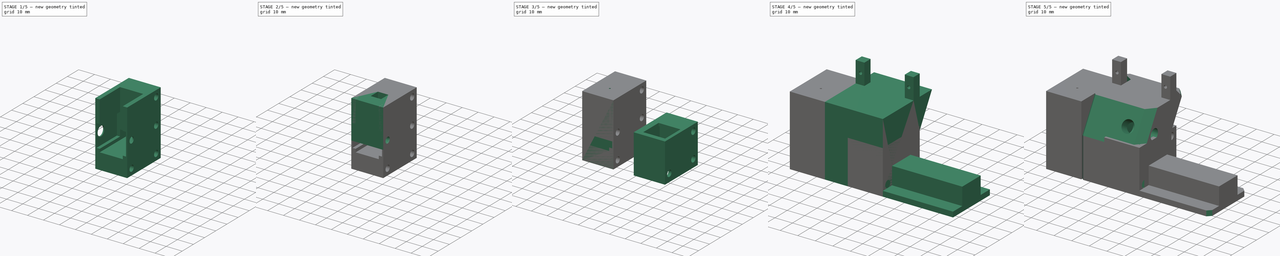
[diagram: build sequence overview — one tinted view per stage of 5, left to right]
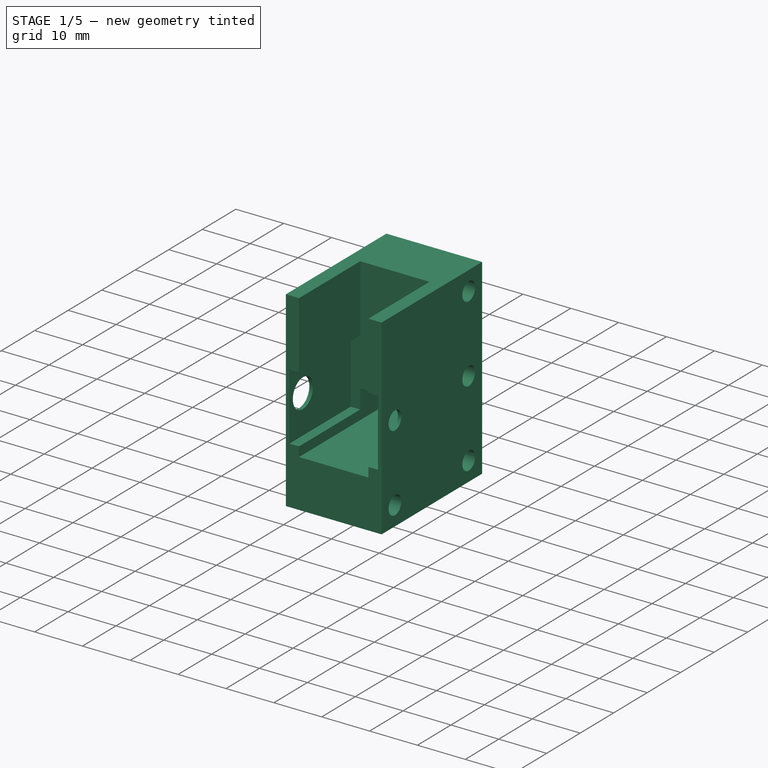
[diagram: stage 1 of 5 — iso view after this stage's code; geometry added in this stage tinted green]
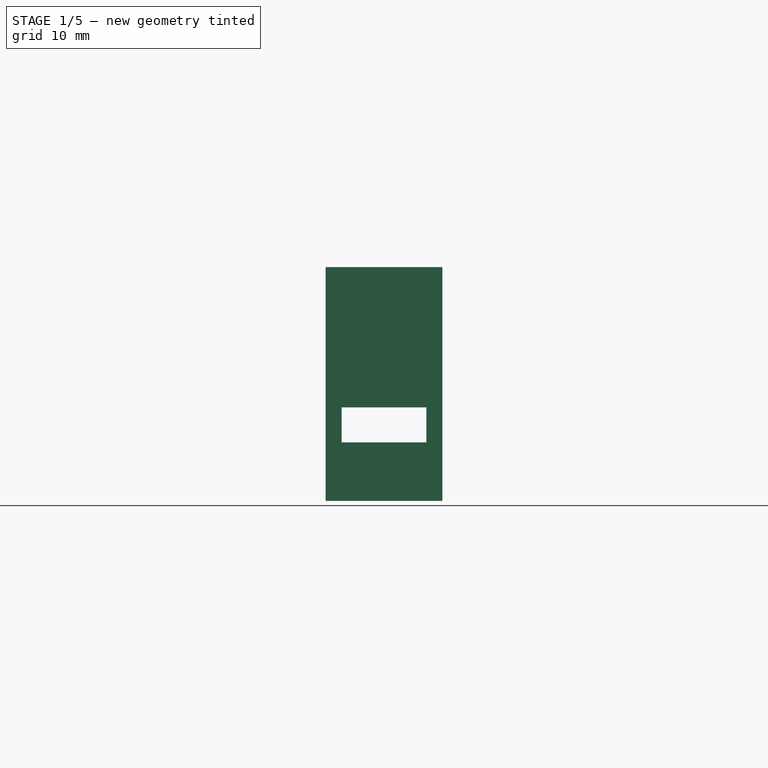
[diagram: stage 1 of 5 — front view after this stage's code; geometry added in this stage tinted green]
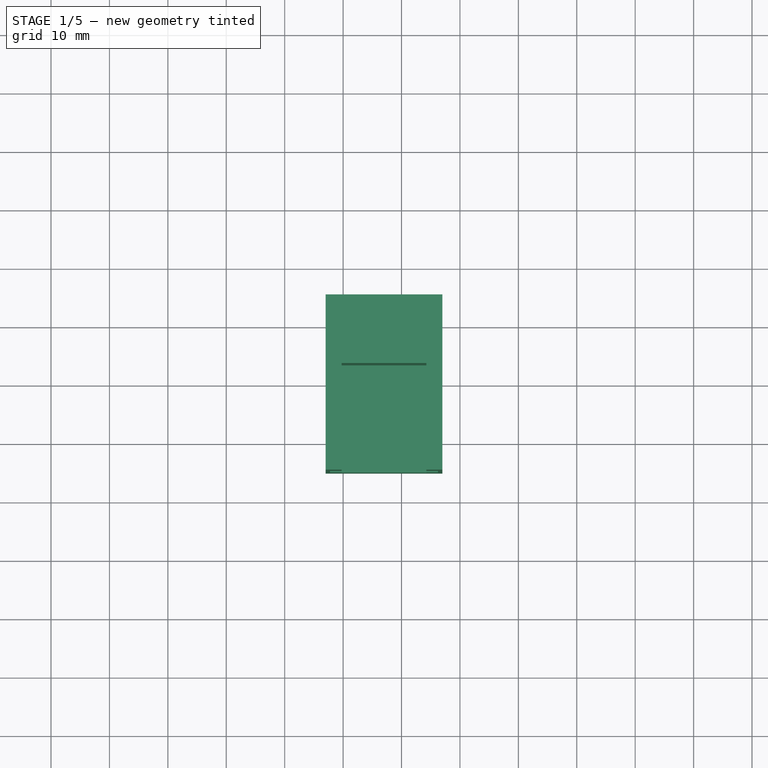
[diagram: stage 1 of 5 — top view after this stage's code; geometry added in this stage tinted green]
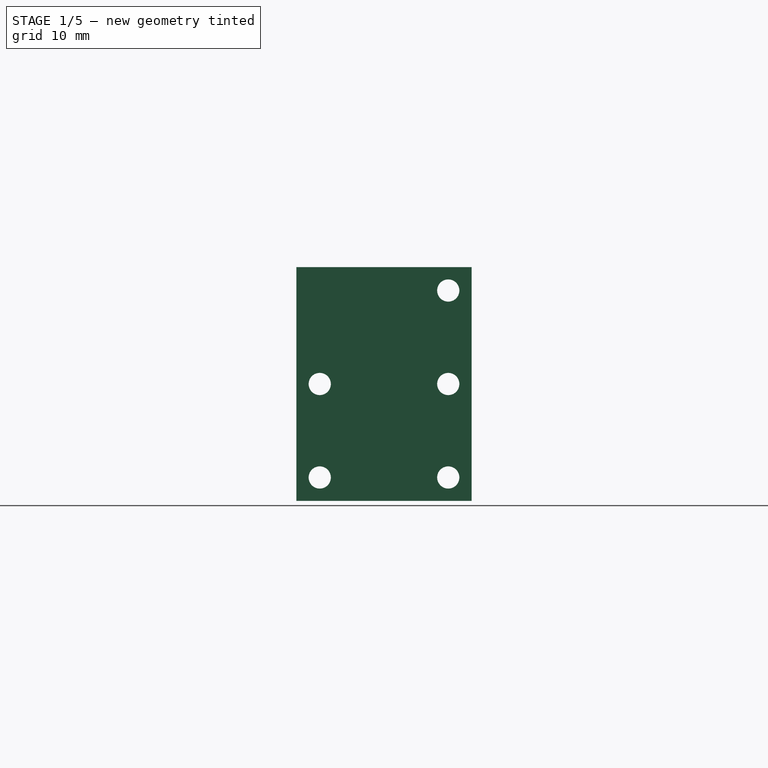
[diagram: stage 1 of 5 — right view after this stage's code; geometry added in this stage tinted green]
FCSTD DOCUMENT  (FreeCAD 0.18.4R)
Label: keyswitch-tester
License: All rights reserved
LicenseURL: http://en.wikipedia.org/wiki/All_rights_reserved
objects: Sketcher::SketchObject×35, PartDesign::Pocket×26, PartDesign::Pad×9, PartDesign::Chamfer×5, PartDesign::Body×5
note: 115 computed .brp shape members not serialized (recipe doc carries the construction recipe); baked Part::Feature solids carry a one-line shape summary decoded from their .brp

FEATURE [PartDesign::Body] Body003  label="MicroswitchHolder"
  Group = -> [Sketch020,Pad007,Sketch019,Pocket013,Sketch021,Pocket012,Sketch022,Pocket014,Sketch023,Pocket015,Sketch024,Pocket016,Sketch025,Pocket017]
  Origin = -> Origin003
  Tip = -> Pocket017
FEATURE [Sketcher::SketchObject] Sketch026
  MapMode = 5
  Support = -> [XY_Plane004]
  sketch-geometry (4):
    g0: LineSegment StartX=-53 StartY=15 StartZ=0 EndX=-33 EndY=15 EndZ=0
    g1: LineSegment StartX=-33 StartY=15 StartZ=0 EndX=-33 EndY=-15 EndZ=0
    g2: LineSegment StartX=-33 StartY=-15 StartZ=0 EndX=-53 EndY=-15 EndZ=0
    g3: LineSegment StartX=-53 StartY=-15 StartZ=0 EndX=-53 EndY=15 EndZ=0
  constraints (12):
    c: Coincident(g0,g1)
    c: Coincident(g1,g2)
    c: Coincident(g2,g3)
    c: Coincident(g3,g0)
    c: Horizontal(g0)
    c: Horizontal(g2)
    c: Vertical(g1)
    c: Vertical(g3)
    c: DistanceY(g3,g3) = 30
    c: DistanceX(g0,g0) = 20
    c: DistanceX(g1,g-1) = 33
    c: DistanceY(g1,g-1) = 15
FEATURE [PartDesign::Pad] Pad008
  Length = 40
  Length2 = 100
  Profile = -> Sketch026
  Refine = true
  Type = 0
FEATURE [Sketcher::SketchObject] Sketch027
  MapMode = 5
  Placement = pos=(-53,0,0) rot=(0.57735,-0.57735,-0.57735;2.0944rad)
  Support = -> [Pad008]
  sketch-geometry (7):
    g0: Circle CenterX=-11 CenterY=36 CenterZ=0 NormalX=0 NormalY=0 NormalZ=1 AngleXU=0 Radius=1.9
    g1: Circle CenterX=11 CenterY=20 CenterZ=0 NormalX=0 NormalY=0 NormalZ=1 AngleXU=0 Radius=1.9
    g2: Circle CenterX=-11 CenterY=20 CenterZ=0 NormalX=0 NormalY=0 NormalZ=1 AngleXU=0 Radius=1.9
    g3: Circle CenterX=-11 CenterY=4 CenterZ=0 NormalX=0 NormalY=0 NormalZ=1 AngleXU=0 Radius=1.9
    g4: Circle CenterX=11 CenterY=4 CenterZ=0 NormalX=0 NormalY=0 NormalZ=1 AngleXU=0 Radius=1.9
    g5: LineSegment [constr] StartX=-11 StartY=36 StartZ=0 EndX=-11 EndY=20 EndZ=0
    g6: LineSegment [constr] StartX=-11 StartY=20 StartZ=0 EndX=-11 EndY=4 EndZ=0
  constraints (18):
    c: Symmetric(g2,g1,g-2)
    c: Symmetric(g3,g4,g-2)
    c: Vertical(g3,g2)
    c: Vertical(g2,g0)
    c: Coincident(g5,g0)
    c: Coincident(g5,g2)
    c: Coincident(g6,g2)
    c: Coincident(g6,g3)
    c: Equal(g6,g5)
    c: Radius(g2) = 1.9
    c: Equal(g1,g2)
    c: Equal(g2,g0)
    c: Equal(g0,g3)
    c: Equal(g3,g4)
    c: DistanceY(g-1,g4) = 4
    c: DistanceX(g3,g4) = 22
    c: Equal(g5,g6)
    c: DistanceY(g6,g6) = 16
FEATURE [PartDesign::Pocket] Pocket018  label="ScrewHoles002"
  BaseFeature = -> Pad008
  Length = 5
  Length2 = 100
  Profile = -> Sketch027
  Refine = true
  Type = 1
FEATURE [Sketcher::SketchObject] Sketch028
  ExternalGeometry = -> [Pocket018]
  MapMode = 5
  Placement = pos=(-53,0,0) rot=(0.57735,-0.57735,-0.57735;2.0944rad)
  Support = -> [Pocket018]
  sketch-geometry (5):
    g0: Circle CenterX=-11 CenterY=36 CenterZ=0 NormalX=0 NormalY=0 NormalZ=1 AngleXU=0 Radius=3
    g1: Circle CenterX=-11 CenterY=20 CenterZ=0 NormalX=0 NormalY=0 NormalZ=1 AngleXU=0 Radius=3
    g2: Circle CenterX=-11 CenterY=4 CenterZ=0 NormalX=0 NormalY=0 NormalZ=1 AngleXU=0 Radius=3
    g3: Circle CenterX=11 CenterY=4 CenterZ=0 NormalX=0 NormalY=0 NormalZ=1 AngleXU=0 Radius=3
    g4: Circle CenterX=11 CenterY=20 CenterZ=0 NormalX=0 NormalY=0 NormalZ=1 AngleXU=0 Radius=3
  constraints (10):
    c: Coincident(g0,g-3)
    c: Coincident(g1,g-4)
    c: Coincident(g2,g-5)
    c: Coincident(g4,g-6)
    c: Coincident(g-7,g3)
    c: Equal(g4,g1)
    c: Equal(g1,g0)
    c: Equal(g0,g2)
    c: Equal(g2,g3)
    c: Radius(g2) = 3
FEATURE [PartDesign::Pocket] Pocket019  label="ScrewHeadHoles002"
  BaseFeature = -> Pocket018
  Length = 3
  Length2 = 100
  Profile = -> Sketch028
  Refine = true
  Type = 0
FEATURE [Sketcher::SketchObject] Sketch029
  ExternalGeometry = -> [Pocket019]
  MapMode = 5
  Placement = pos=(0,0,40) rot=(0,0,1;0rad)
  Support = -> [Pocket019]
  sketch-geometry (1):
    g0: Circle CenterX=-43 CenterY=-4 CenterZ=0 NormalX=0 NormalY=0 NormalZ=1 AngleXU=0 Radius=0.5
  constraints (3):
    c: DistanceY(g-3,g0) = 11
    c: DistanceX(g0,g-3) = 10
    c: Radius(g0) = 0.5
FEATURE [PartDesign::Pocket] Pocket020  label="CentrePoint002"
  BaseFeature = -> Pocket019
  Length = 0.5
  Length2 = 100
  Profile = -> Sketch029
  Refine = true
  Type = 0
FEATURE [Sketcher::SketchObject] Sketch030
  ExternalGeometry = -> [Pocket020]
  MapMode = 5
  Placement = pos=(0,0,40) rot=(0,0,1;0rad)
  Support = -> [Pocket020]
  sketch-geometry (4):
    g0: LineSegment StartX=-50.25 StartY=3.25 StartZ=0 EndX=-35.75 EndY=3.25 EndZ=0
    g1: LineSegment StartX=-35.75 StartY=3.25 StartZ=0 EndX=-35.75 EndY=-11.25 EndZ=0
    g2: LineSegment StartX=-35.75 StartY=-11.25 StartZ=0 EndX=-50.25 EndY=-11.25 EndZ=0
    g3: LineSegment StartX=-50.25 StartY=-11.25 StartZ=0 EndX=-50.25 EndY=3.25 EndZ=0
  constraints (11):
    c: Coincident(g0,g1)
    c: Coincident(g1,g2)
    c: Coincident(g2,g3)
    c: Coincident(g3,g0)
    c: Horizontal(g0)
    c: Horizontal(g2)
    c: Vertical(g1)
    c: Vertical(g3)
    c: Symmetric(g0,g1,g-3)
    c: DistanceY(g1,g1) = 14.5
    c: Equal(g1,g0)
FEATURE [PartDesign::Pocket] Pocket021
  BaseFeature = -> Pocket020
  Length = 30
  Length2 = 100
  Profile = -> Sketch030
  Refine = true
  Type = 0
FEATURE [Sketcher::SketchObject] Sketch031
  ExternalGeometry = -> [Pocket021]
  MapMode = 5
  Placement = pos=(0,-15,0) rot=(1,0,0;1.5708rad)
  Support = -> [Pocket021]
  sketch-geometry (4):
    g0: LineSegment StartX=-50.25 StartY=40 StartZ=0 EndX=-35.75 EndY=40 EndZ=0
    g1: LineSegment StartX=-35.75 StartY=40 StartZ=0 EndX=-35.75 EndY=10 EndZ=0
    g2: LineSegment StartX=-35.75 StartY=10 StartZ=0 EndX=-50.25 EndY=10 EndZ=0
    g3: LineSegment StartX=-50.25 StartY=10 StartZ=0 EndX=-50.25 EndY=40 EndZ=0
  constraints (10):
    c: Coincident(g0,g1)
    c: Coincident(g1,g2)
    c: Coincident(g2,g3)
    c: Coincident(g3,g0)
    c: Horizontal(g2)
    c: Vertical(g1)
    c: Vertical(g3)
    c: Coincident(g0,g-3)
    c: Coincident(g0,g-3)
    c: DistanceY(g3,g3) = 30
FEATURE [PartDesign::Pocket] Pocket022
  BaseFeature = -> Pocket021
  Length = 5
  Length2 = 100
  Profile = -> Sketch031
  Refine = true
  Type = 0
FEATURE [Sketcher::SketchObject] Sketch032
  ExternalGeometry = -> [Pocket022]
  MapMode = 5
  Placement = pos=(0,3.25,0) rot=(1,0,0;1.5708rad)
  Support = -> [Pocket022]
  sketch-geometry (4):
    g0: LineSegment StartX=-50.25 StartY=10 StartZ=0 EndX=-35.75 EndY=10 EndZ=0
    g1: LineSegment StartX=-35.75 StartY=10 StartZ=0 EndX=-35.75 EndY=16 EndZ=0
    g2: LineSegment StartX=-35.75 StartY=16 StartZ=0 EndX=-50.25 EndY=16 EndZ=0
    g3: LineSegment StartX=-50.25 StartY=16 StartZ=0 EndX=-50.25 EndY=10 EndZ=0
  constraints (10):
    c: Coincident(g0,g1)
    c: Coincident(g1,g2)
    c: Coincident(g2,g3)
    c: Coincident(g3,g0)
    c: Horizontal(g2)
    c: Vertical(g1)
    c: Vertical(g3)
    c: Coincident(g0,g-3)
    c: Coincident(g0,g-4)
    c: DistanceY(g1,g1) = 6
FEATURE [PartDesign::Pocket] Pocket023
  BaseFeature = -> Pocket022
  Length = 5
  Length2 = 100
  Profile = -> Sketch032
  Refine = true
  Type = 1
FEATURE [Sketcher::SketchObject] Sketch033
  ExternalGeometry = -> [Pocket023]
  MapMode = 5
  Placement = pos=(0,-15,0) rot=(1,0,0;1.5708rad)
  Support = -> [Pocket023]
  sketch-geometry (8):
    g0: LineSegment StartX=-50.25 StartY=26 StartZ=0 EndX=-52.25 EndY=26 EndZ=0
    g1: LineSegment StartX=-52.25 StartY=26 StartZ=0 EndX=-52.25 EndY=12 EndZ=0
    g2: LineSegment StartX=-52.25 StartY=12 StartZ=0 EndX=-50.25 EndY=12 EndZ=0
    g3: LineSegment StartX=-50.25 StartY=12 StartZ=0 EndX=-50.25 EndY=26 EndZ=0
    g4: LineSegment StartX=-35.75 StartY=26 StartZ=0 EndX=-33.75 EndY=26 EndZ=0
    g5: LineSegment StartX=-33.75 StartY=26 StartZ=0 EndX=-33.75 EndY=12 EndZ=0
    g6: LineSegment StartX=-33.75 StartY=12 StartZ=0 EndX=-35.75 EndY=12 EndZ=0
    g7: LineSegment StartX=-35.75 StartY=12 StartZ=0 EndX=-35.75 EndY=26 EndZ=0
  constraints (24):
    c: Coincident(g0,g1)
    c: Coincident(g1,g2)
    c: Coincident(g3,g0)
    c: Horizontal(g0)
    c: Horizontal(g2)
    c: Vertical(g1)
    c: Vertical(g3)
    c: DistanceX(g0,g0) = 2
    c: Coincident(g3,g2)
    c: PointOnObject(g2,g-3)
    c: DistanceY(g0,g-3) = 14
    c: DistanceY(g3,g3) = 14
    c: Coincident(g4,g5)
    c: Coincident(g5,g6)
    c: Coincident(g6,g7)
    c: Coincident(g7,g4)
    c: Horizontal(g4)
    c: Horizontal(g6)
    c: Vertical(g5)
    c: Vertical(g7)
    c: PointOnObject(g4,g-4)
    c: Horizontal(g0,g4)
    c: Equal(g4,g0)
    c: Equal(g7,g3)
FEATURE [PartDesign::Pocket] Pocket024
  BaseFeature = -> Pocket023
  Length = 18.25
  Length2 = 100
  Profile = -> Sketch033
  Refine = true
  Type = 0
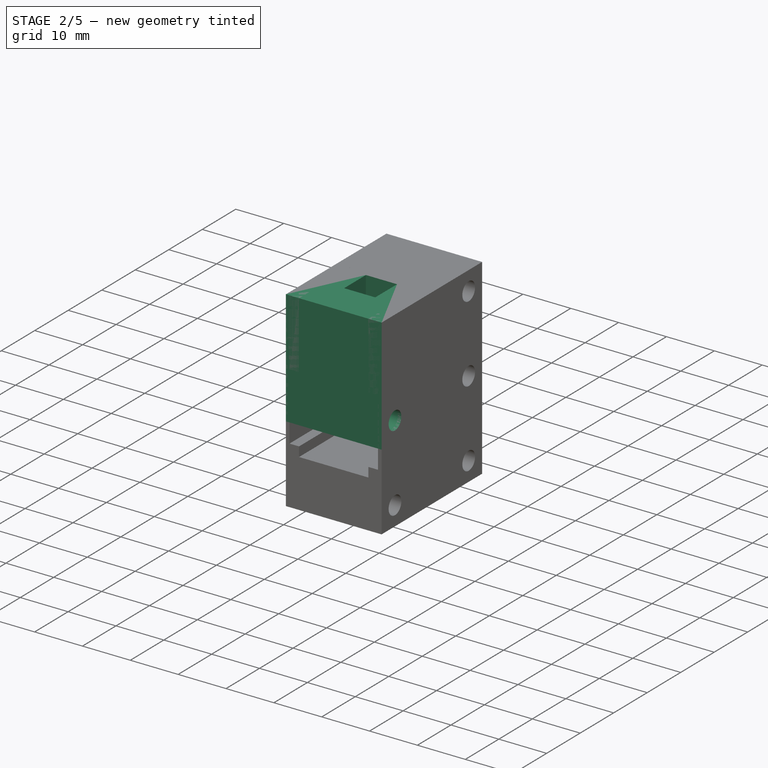
[diagram: stage 2 of 5 — iso view after this stage's code; geometry added in this stage tinted green]
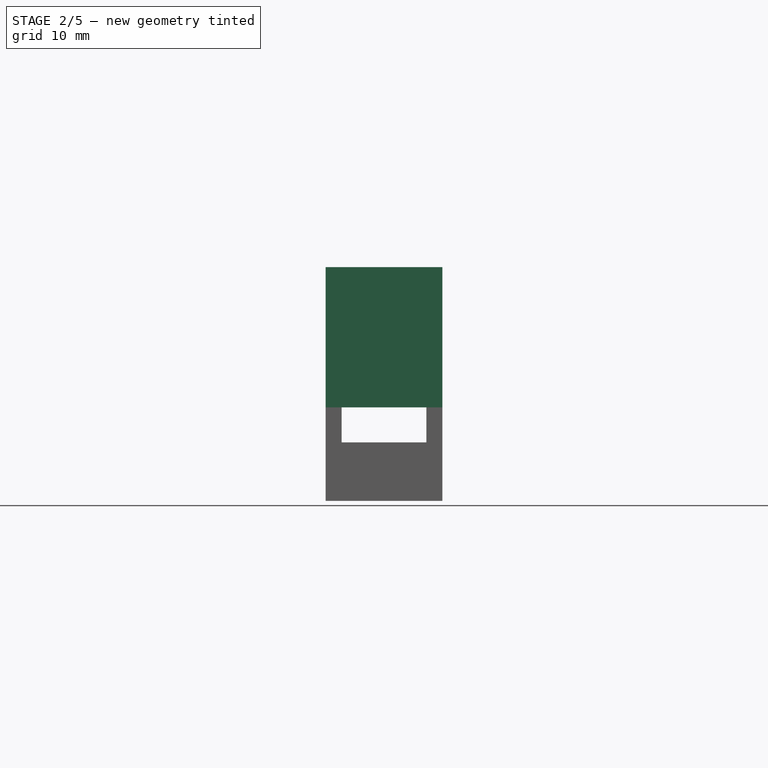
[diagram: stage 2 of 5 — front view after this stage's code; geometry added in this stage tinted green]
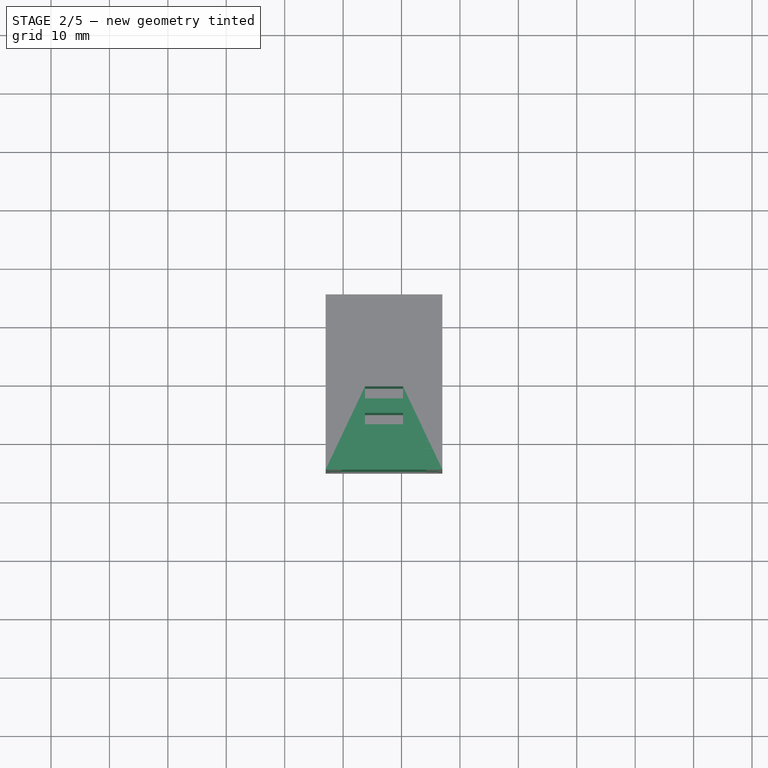
[diagram: stage 2 of 5 — top view after this stage's code; geometry added in this stage tinted green]
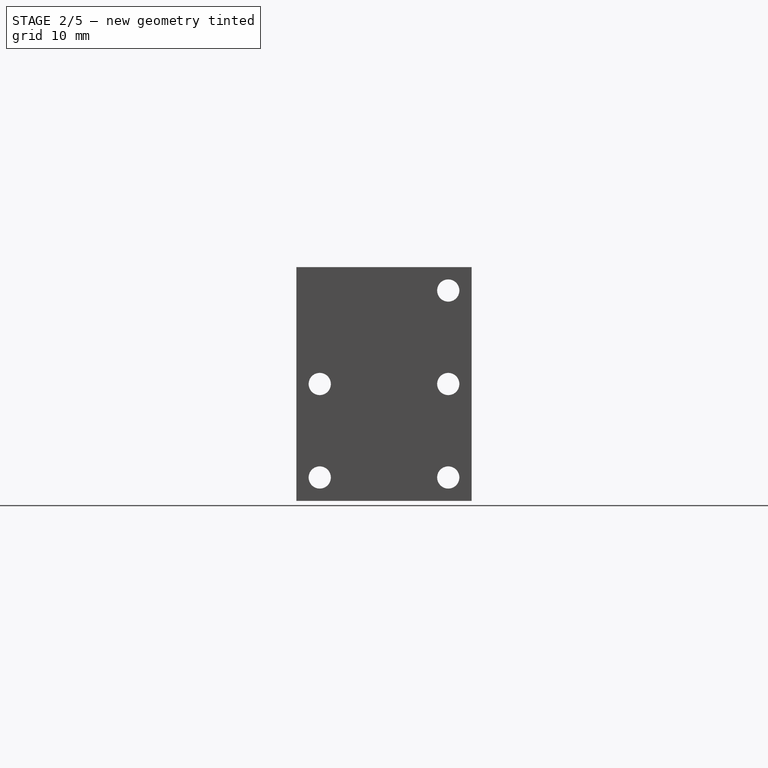
[diagram: stage 2 of 5 — right view after this stage's code; geometry added in this stage tinted green]
FEATURE [PartDesign::Body] Body002  label="BlankHolder"
  Group = -> [Sketch015,Pad006,Sketch016,Pocket009,Sketch017,Pocket010,Sketch018,Pocket011]
  Origin = -> Origin002
  Tip = -> Pocket011
FEATURE [Sketcher::SketchObject] Sketch020
  MapMode = 5
  Support = -> [XY_Plane003]
  sketch-geometry (4):
    g0: LineSegment StartX=-53 StartY=15 StartZ=0 EndX=-33 EndY=15 EndZ=0
    g1: LineSegment StartX=-33 StartY=15 StartZ=0 EndX=-33 EndY=-15 EndZ=0
    g2: LineSegment StartX=-33 StartY=-15 StartZ=0 EndX=-53 EndY=-15 EndZ=0
    g3: LineSegment StartX=-53 StartY=-15 StartZ=0 EndX=-53 EndY=15 EndZ=0
  constraints (12):
    c: Coincident(g0,g1)
    c: Coincident(g1,g2)
    c: Coincident(g2,g3)
    c: Coincident(g3,g0)
    c: Horizontal(g0)
    c: Horizontal(g2)
    c: Vertical(g1)
    c: Vertical(g3)
    c: DistanceY(g3,g3) = 30
    c: DistanceX(g0,g0) = 20
    c: DistanceX(g1,g-1) = 33
    c: DistanceY(g1,g-1) = 15
FEATURE [PartDesign::Pad] Pad007
  Length = 40
  Length2 = 100
  Profile = -> Sketch020
  Refine = true
  Type = 0
FEATURE [Sketcher::SketchObject] Sketch019
  MapMode = 5
  Placement = pos=(-53,0,0) rot=(0.57735,-0.57735,-0.57735;2.0944rad)
  Support = -> [Pad007]
  sketch-geometry (7):
    g0: Circle CenterX=-11 CenterY=36 CenterZ=0 NormalX=0 NormalY=0 NormalZ=1 AngleXU=0 Radius=1.9
    g1: Circle CenterX=11 CenterY=20 CenterZ=0 NormalX=0 NormalY=0 NormalZ=1 AngleXU=0 Radius=1.9
    g2: Circle CenterX=-11 CenterY=20 CenterZ=0 NormalX=0 NormalY=0 NormalZ=1 AngleXU=0 Radius=1.9
    g3: Circle CenterX=-11 CenterY=4 CenterZ=0 NormalX=0 NormalY=0 NormalZ=1 AngleXU=0 Radius=1.9
    g4: Circle CenterX=11 CenterY=4 CenterZ=0 NormalX=0 NormalY=0 NormalZ=1 AngleXU=0 Radius=1.9
    g5: LineSegment [constr] StartX=-11 StartY=36 StartZ=0 EndX=-11 EndY=20 EndZ=0
    g6: LineSegment [constr] StartX=-11 StartY=20 StartZ=0 EndX=-11 EndY=4 EndZ=0
  constraints (18):
    c: Symmetric(g2,g1,g-2)
    c: Symmetric(g3,g4,g-2)
    c: Vertical(g3,g2)
    c: Vertical(g2,g0)
    c: Coincident(g5,g0)
    c: Coincident(g5,g2)
    c: Coincident(g6,g2)
    c: Coincident(g6,g3)
    c: Equal(g6,g5)
    c: Radius(g2) = 1.9
    c: Equal(g1,g2)
    c: Equal(g2,g0)
    c: Equal(g0,g3)
    c: Equal(g3,g4)
    c: DistanceY(g-1,g4) = 4
    c: DistanceX(g3,g4) = 22
    c: Equal(g5,g6)
    c: DistanceY(g6,g6) = 16
FEATURE [PartDesign::Pocket] Pocket013  label="ScrewHoles001"
  BaseFeature = -> Pad007
  Length = 5
  Length2 = 100
  Profile = -> Sketch019
  Refine = true
  Type = 1
FEATURE [Sketcher::SketchObject] Sketch021
  ExternalGeometry = -> [Pocket013]
  MapMode = 5
  Placement = pos=(-53,0,0) rot=(0.57735,-0.57735,-0.57735;2.0944rad)
  Support = -> [Pocket013]
  sketch-geometry (5):
    g0: Circle CenterX=-11 CenterY=36 CenterZ=0 NormalX=0 NormalY=0 NormalZ=1 AngleXU=0 Radius=3
    g1: Circle CenterX=-11 CenterY=20 CenterZ=0 NormalX=0 NormalY=0 NormalZ=1 AngleXU=0 Radius=3
    g2: Circle CenterX=-11 CenterY=4 CenterZ=0 NormalX=0 NormalY=0 NormalZ=1 AngleXU=0 Radius=3
    g3: Circle CenterX=11 CenterY=4 CenterZ=0 NormalX=0 NormalY=0 NormalZ=1 AngleXU=0 Radius=3
    g4: Circle CenterX=11 CenterY=20 CenterZ=0 NormalX=0 NormalY=0 NormalZ=1 AngleXU=0 Radius=3
  constraints (10):
    c: Coincident(g0,g-3)
    c: Coincident(g1,g-4)
    c: Coincident(g2,g-5)
    c: Coincident(g4,g-6)
    c: Coincident(g-7,g3)
    c: Equal(g4,g1)
    c: Equal(g1,g0)
    c: Equal(g0,g2)
    c: Equal(g2,g3)
    c: Radius(g2) = 3
FEATURE [PartDesign::Pocket] Pocket012  label="ScrewHeadHoles001"
  BaseFeature = -> Pocket013
  Length = 3
  Length2 = 100
  Profile = -> Sketch021
  Refine = true
  Type = 0
FEATURE [Sketcher::SketchObject] Sketch022
  ExternalGeometry = -> [Pocket012]
  MapMode = 5
  Placement = pos=(0,0,40) rot=(0,0,1;0rad)
  Support = -> [Pocket012]
  sketch-geometry (1):
    g0: Circle CenterX=-43 CenterY=-4 CenterZ=0 NormalX=0 NormalY=0 NormalZ=1 AngleXU=0 Radius=0.5
  constraints (3):
    c: DistanceY(g-3,g0) = 11
    c: DistanceX(g0,g-3) = 10
    c: Radius(g0) = 0.5
FEATURE [PartDesign::Pocket] Pocket014  label="CentrePoint001"
  BaseFeature = -> Pocket012
  Length = 0.5
  Length2 = 100
  Profile = -> Sketch022
  Refine = true
  Type = 0
FEATURE [Sketcher::SketchObject] Sketch023
  ExternalGeometry = -> [Pocket014]
  MapMode = 5
  Placement = pos=(-53,0,0) rot=(0.57735,-0.57735,-0.57735;2.0944rad)
  Support = -> [Pocket014]
  sketch-geometry (4):
    g0: LineSegment StartX=-15 StartY=0 StartZ=0 EndX=15 EndY=0 EndZ=0
    g1: LineSegment StartX=15 StartY=0 StartZ=0 EndX=15 EndY=16 EndZ=0
    g2: LineSegment StartX=15 StartY=16 StartZ=0 EndX=-15 EndY=16 EndZ=0
    g3: LineSegment StartX=-15 StartY=16 StartZ=0 EndX=-15 EndY=0 EndZ=0
  constraints (11):
    c: Coincident(g0,g1)
    c: Coincident(g1,g2)
    c: Coincident(g2,g3)
    c: Coincident(g3,g0)
    c: Horizontal(g0)
    c: Horizontal(g2)
    c: Vertical(g1)
    c: Vertical(g3)
    c: Coincident(g0,g-3)
    c: PointOnObject(g1,g-4)
    c: DistanceY(g1,g1) = 16
FEATURE [PartDesign::Pocket] Pocket015
  BaseFeature = -> Pocket014
  Length = 5
  Length2 = 100
  Profile = -> Sketch023
  Refine = true
  Type = 1
FEATURE [Sketcher::SketchObject] Sketch024
  ExternalGeometry = -> [Pocket015]
  MapMode = 5
  Placement = pos=(0,0,40) rot=(0,0,1;0rad)
  Support = -> [Pocket015]
  sketch-geometry (4):
    g0: LineSegment StartX=-46.25 StartY=-0.75 StartZ=0 EndX=-39.75 EndY=-0.75 EndZ=0
    g1: LineSegment StartX=-39.75 StartY=-0.75 StartZ=0 EndX=-39.75 EndY=-7.25 EndZ=0
    g2: LineSegment StartX=-39.75 StartY=-7.25 StartZ=0 EndX=-46.25 EndY=-7.25 EndZ=0
    g3: LineSegment StartX=-46.25 StartY=-7.25 StartZ=0 EndX=-46.25 EndY=-0.75 EndZ=0
  constraints (11):
    c: Coincident(g0,g1)
    c: Coincident(g1,g2)
    c: Coincident(g2,g3)
    c: Coincident(g3,g0)
    c: Horizontal(g0)
    c: Horizontal(g2)
    c: Vertical(g1)
    c: Vertical(g3)
    c: Equal(g1,g2)
    c: DistanceX(g2,g2) = 6.5
    c: Symmetric(g2,g0,g-3)
FEATURE [PartDesign::Pocket] Pocket016
  BaseFeature = -> Pocket015
  Length = 3
  Length2 = 100
  Profile = -> Sketch024
  Refine = true
  Type = 0
FEATURE [Sketcher::SketchObject] Sketch025
  ExternalGeometry = -> [Pocket016]
  MapMode = 5
  Placement = pos=(0,0,37) rot=(0,0,1;0rad)
  Support = -> [Pocket016]
  sketch-geometry (8):
    g0: LineSegment StartX=-46.25 StartY=-0.75 StartZ=0 EndX=-39.75 EndY=-0.75 EndZ=0
    g1: LineSegment StartX=-39.75 StartY=-0.75 StartZ=0 EndX=-39.75 EndY=-2.75 EndZ=0
    g2: LineSegment StartX=-39.75 StartY=-2.75 StartZ=0 EndX=-46.25 EndY=-2.75 EndZ=0
    g3: LineSegment StartX=-46.25 StartY=-2.75 StartZ=0 EndX=-46.25 EndY=-0.75 EndZ=0
    g4: LineSegment StartX=-46.25 StartY=-7.25 StartZ=0 EndX=-39.75 EndY=-7.25 EndZ=0
    g5: LineSegment StartX=-39.75 StartY=-7.25 StartZ=0 EndX=-39.75 EndY=-5.25 EndZ=0
    g6: LineSegment StartX=-39.75 StartY=-5.25 StartZ=0 EndX=-46.25 EndY=-5.25 EndZ=0
    g7: LineSegment StartX=-46.25 StartY=-5.25 StartZ=0 EndX=-46.25 EndY=-7.25 EndZ=0
  constraints (20):
    c: Coincident(g0,g1)
    c: Coincident(g1,g2)
    c: Coincident(g2,g3)
    c: Coincident(g3,g0)
    c: Horizontal(g2)
    c: Vertical(g1)
    c: Vertical(g3)
    c: Coincident(g0,g-3)
    c: Coincident(g4,g5)
    c: Coincident(g5,g6)
    c: Coincident(g6,g7)
    c: Coincident(g7,g4)
    c: Horizontal(g6)
    c: Vertical(g5)
    c: Vertical(g7)
    c: Coincident(g4,g-4)
    c: Coincident(g4,g-4)
    c: Coincident(g0,g-3)
    c: Equal(g3,g7)
    c: DistanceY(g3,g3) = 2
FEATURE [PartDesign::Pocket] Pocket017
  BaseFeature = -> Pocket016
  Length = 20
  Length2 = 100
  Profile = -> Sketch025
  Refine = true
  Type = 1
FEATURE [Sketcher::SketchObject] Sketch034
  ExternalGeometry = -> [Pocket024]
  MapMode = 5
  Placement = pos=(0,3.25,7e-16) rot=(1,0,0;1.5708rad)
  Support = -> [Pocket024]
  sketch-geometry (4):
    g0: LineSegment StartX=-50.25 StartY=26 StartZ=0 EndX=-35.75 EndY=26 EndZ=0
    g1: LineSegment StartX=-35.75 StartY=26 StartZ=0 EndX=-35.75 EndY=16 EndZ=0
    g2: LineSegment StartX=-35.75 StartY=16 StartZ=0 EndX=-50.25 EndY=16 EndZ=0
    g3: LineSegment StartX=-50.25 StartY=16 StartZ=0 EndX=-50.25 EndY=26 EndZ=0
  constraints (10):
    c: Coincident(g0,g1)
    c: Coincident(g1,g2)
    c: Coincident(g2,g3)
    c: Coincident(g3,g0)
    c: Horizontal(g0)
    c: Horizontal(g2)
    c: Vertical(g1)
    c: PointOnObject(g0,g-4)
    c: Coincident(g-5,g2)
    c: Coincident(g-6,g0)
FEATURE [PartDesign::Pocket] Pocket025
  BaseFeature = -> Pocket024
  Length = 4
  Length2 = 100
  Profile = -> Sketch034
  Refine = true
  Type = 0
FEATURE [PartDesign::Body] Body004  label="JesHolder"
  Group = -> [Sketch026,Pad008,Sketch027,Pocket018,Sketch028,Pocket019,Sketch029,Pocket020,Sketch030,Pocket021,Sketch031,Pocket022,Sketch032,Pocket023,Sketch033,Pocket024,Sketch034,Pocket025]
  Origin = -> Origin004
  Tip = -> Pocket025
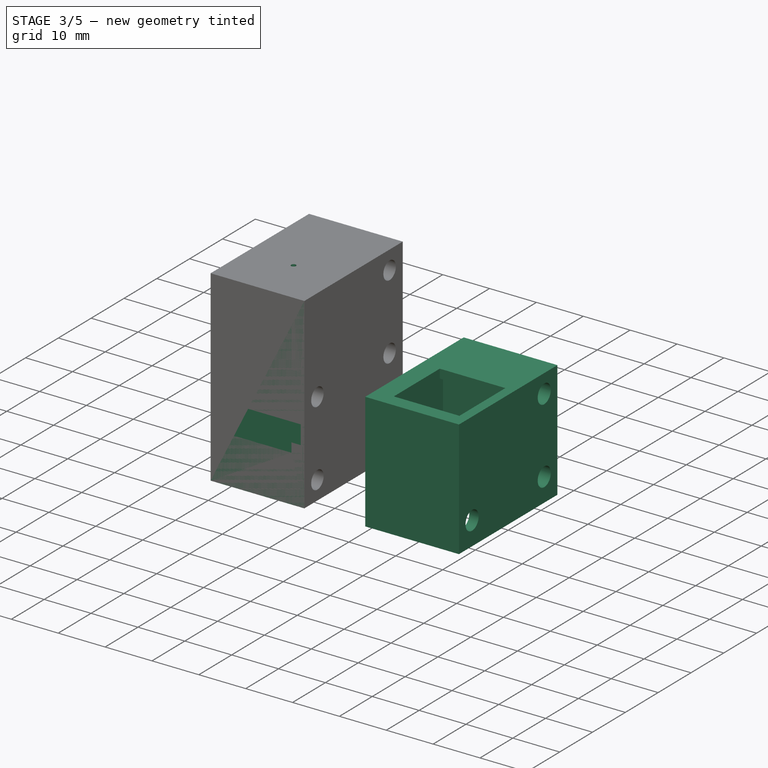
[diagram: stage 3 of 5 — iso view after this stage's code; geometry added in this stage tinted green]
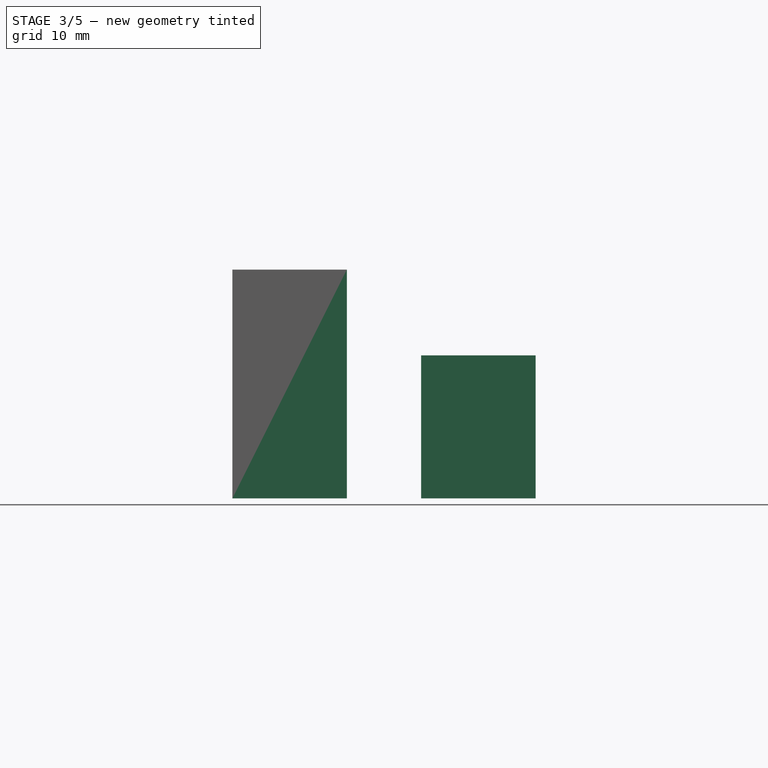
[diagram: stage 3 of 5 — front view after this stage's code; geometry added in this stage tinted green]
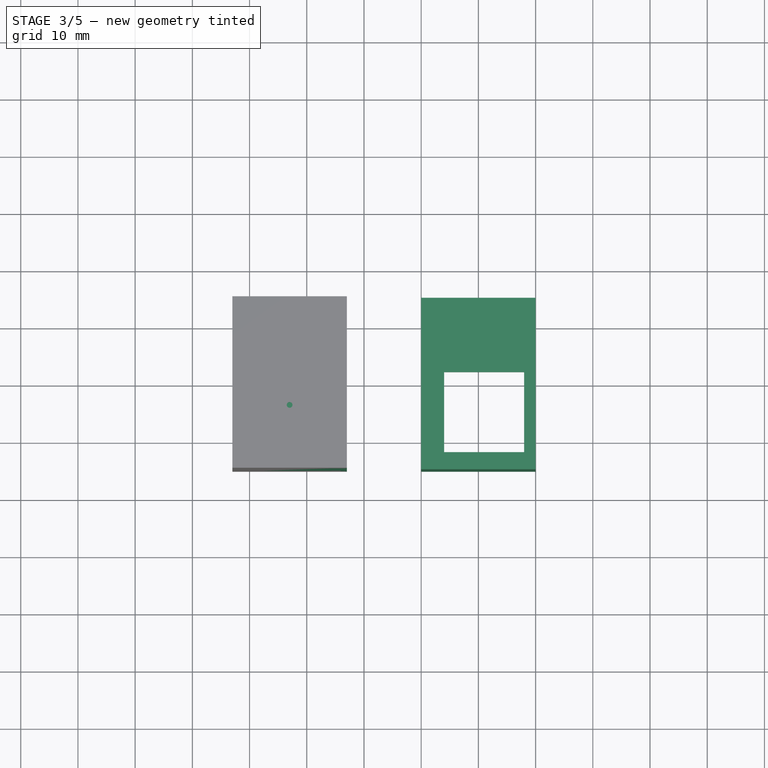
[diagram: stage 3 of 5 — top view after this stage's code; geometry added in this stage tinted green]
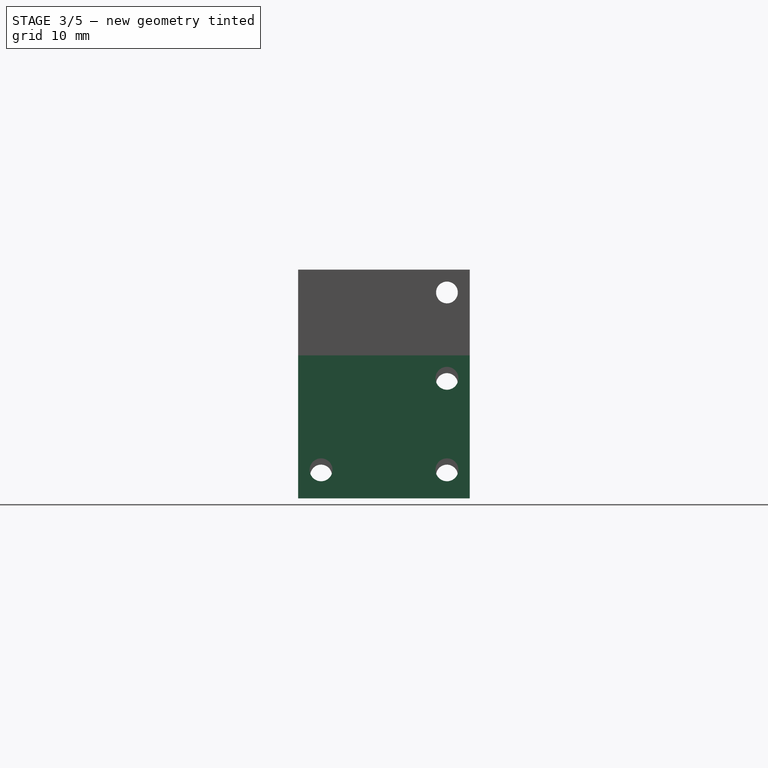
[diagram: stage 3 of 5 — right view after this stage's code; geometry added in this stage tinted green]
FEATURE [PartDesign::Body] Body
  Group = -> [Sketch,Pad,Sketch001,Pad001,Sketch002,Pocket,Sketch003,Pad002,Sketch004,Pocket001,Sketch005,Pad003,Sketch006,Pocket002,Chamfer,Chamfer001,Chamfer002,Chamfer003,Sketch007,Pocket003,Sketch008,Pocket004,Chamfer004]
  Origin = -> Origin
  Tip = -> Chamfer004
FEATURE [Sketcher::SketchObject] Sketch009
  MapMode = 5
  Support = -> [XY_Plane001]
  sketch-geometry (8):
    g0: LineSegment StartX=-20 StartY=15 StartZ=0 EndX=0 EndY=15 EndZ=0
    g1: LineSegment StartX=0 StartY=15 StartZ=0 EndX=0 EndY=-15 EndZ=0
    g2: LineSegment StartX=0 StartY=-15 StartZ=0 EndX=-20 EndY=-15 EndZ=0
    g3: LineSegment StartX=-20 StartY=-15 StartZ=0 EndX=-20 EndY=15 EndZ=0
    g4: LineSegment StartX=-16 StartY=2 StartZ=0 EndX=-2 EndY=2 EndZ=0
    g5: LineSegment StartX=-2 StartY=2 StartZ=0 EndX=-2 EndY=-12 EndZ=0
    g6: LineSegment StartX=-2 StartY=-12 StartZ=0 EndX=-16 EndY=-12 EndZ=0
    g7: LineSegment StartX=-16 StartY=-12 StartZ=0 EndX=-16 EndY=2 EndZ=0
  constraints (23):
    c: Coincident(g0,g1)
    c: Coincident(g1,g2)
    c: Coincident(g2,g3)
    c: Coincident(g3,g0)
    c: Horizontal(g0)
    c: Horizontal(g2)
    c: Vertical(g1)
    c: Coincident(g4,g5)
    c: Coincident(g5,g6)
    c: Coincident(g6,g7)
    c: Coincident(g7,g4)
    c: Horizontal(g4)
    c: Horizontal(g6)
    c: Vertical(g5)
    c: Vertical(g7)
    c: DistanceX(g6,g6) = 14
    c: Equal(g7,g6)
    c: DistanceX(g5,g1) = 2
    c: DistanceY(g1,g1) = 30
    c: Symmetric(g2,g0,g-1)
    c: PointOnObject(g-1,g1)
    c: DistanceX(g2,g2) = 20
    c: DistanceY(g1,g5) = 3
FEATURE [PartDesign::Pad] Pad004
  Length = 25
  Length2 = 100
  Profile = -> Sketch009
  Refine = true
  Type = 0
FEATURE [Sketcher::SketchObject] Sketch010
  ExternalGeometry = -> [Pad004]
  MapMode = 5
  Placement = pos=(0,15,0) rot=(0,0.707107,0.707107;3.14159rad)
  Support = -> [Pad004]
  sketch-geometry (1):
    g0: Circle CenterX=10 CenterY=12.5 CenterZ=0 NormalX=0 NormalY=0 NormalZ=1 AngleXU=0 Radius=4
  constraints (2):
    c: Symmetric(g-3,g-4,g0)
    c: Radius(g0) = 4
FEATURE [PartDesign::Pocket] Pocket005
  BaseFeature = -> Pad004
  Length = 15
  Length2 = 100
  Profile = -> Sketch010
  Refine = true
  Type = 0
FEATURE [Sketcher::SketchObject] Sketch011
  ExternalGeometry = -> [Pocket005]
  MapMode = 5
  Placement = pos=(0,0,0) rot=(1,0,0;3.14159rad)
  Support = -> [Pocket005]
  sketch-geometry (4):
    g0: LineSegment StartX=-16 StartY=13 StartZ=0 EndX=-2 EndY=13 EndZ=0
    g1: LineSegment StartX=-2 StartY=13 StartZ=0 EndX=-2 EndY=-3 EndZ=0
    g2: LineSegment StartX=-2 StartY=-3 StartZ=0 EndX=-16 EndY=-3 EndZ=0
    g3: LineSegment StartX=-16 StartY=-3 StartZ=0 EndX=-16 EndY=13 EndZ=0
  constraints (12):
    c: Coincident(g0,g1)
    c: Coincident(g1,g2)
    c: Coincident(g2,g3)
    c: Coincident(g3,g0)
    c: Horizontal(g0)
    c: Horizontal(g2)
    c: Vertical(g1)
    c: Vertical(g3)
    c: PointOnObject(g-4,g1)
    c: PointOnObject(g-3,g3)
    c: DistanceY(g-3,g0) = 1
    c: DistanceY(g2,g-3) = 1
FEATURE [PartDesign::Pocket] Pocket006
  BaseFeature = -> Pocket005
  Length = 0
  Length2 = 100
  Offset = -1.9
  Profile = -> Sketch011
  Refine = true
  Type = 3
  UpToFace = -> Pocket005 [Face4]
FEATURE [Sketcher::SketchObject] Sketch012
  MapMode = 5
  Placement = pos=(-20,0,0) rot=(0.57735,-0.57735,-0.57735;2.0944rad)
  Support = -> [Pocket006]
  sketch-geometry (3):
    g0: Circle CenterX=-11 CenterY=21 CenterZ=0 NormalX=0 NormalY=0 NormalZ=1 AngleXU=0 Radius=2
    g1: Circle CenterX=-11 CenterY=5 CenterZ=0 NormalX=0 NormalY=0 NormalZ=1 AngleXU=0 Radius=2
    g2: Circle CenterX=11 CenterY=5 CenterZ=0 NormalX=0 NormalY=0 NormalZ=1 AngleXU=0 Radius=2
  constraints (8):
    c: Vertical(g0,g1)
    c: Symmetric(g1,g2,g-2)
    c: Equal(g1,g2)
    c: Equal(g2,g0)
    c: Radius(g1) = 2
    c: DistanceY(g-1,g1) = 5
    c: DistanceY(g1,g0) = 16
    c: DistanceX(g1,g-1) = 11
FEATURE [PartDesign::Pocket] Pocket007
  BaseFeature = -> Pocket006
  Length = 5
  Length2 = 100
  Profile = -> Sketch012
  Refine = true
  Type = 1
FEATURE [PartDesign::Body] Body001  label="CherryHolder"
  Group = -> [Sketch009,Pad004,Sketch010,Pocket005,Sketch011,Pocket006,Sketch012,Pocket007,Sketch013,Pocket008,Sketch014,Pad005]
  Origin = -> Origin001
  Placement = pos=(-33,0,15) rot=(0,0,1;0rad)
  Tip = -> Pad005
FEATURE [Sketcher::SketchObject] Sketch015
  MapMode = 5
  Support = -> [XY_Plane002]
  sketch-geometry (4):
    g0: LineSegment StartX=-53 StartY=15 StartZ=0 EndX=-33 EndY=15 EndZ=0
    g1: LineSegment StartX=-33 StartY=15 StartZ=0 EndX=-33 EndY=-15 EndZ=0
    g2: LineSegment StartX=-33 StartY=-15 StartZ=0 EndX=-53 EndY=-15 EndZ=0
    g3: LineSegment StartX=-53 StartY=-15 StartZ=0 EndX=-53 EndY=15 EndZ=0
  constraints (12):
    c: Coincident(g0,g1)
    c: Coincident(g1,g2)
    c: Coincident(g2,g3)
    c: Coincident(g3,g0)
    c: Horizontal(g0)
    c: Horizontal(g2)
    c: Vertical(g1)
    c: Vertical(g3)
    c: DistanceY(g3,g3) = 30
    c: DistanceX(g0,g0) = 20
    c: DistanceX(g1,g-1) = 33
    c: DistanceY(g1,g-1) = 15
FEATURE [PartDesign::Pad] Pad006
  Length = 40
  Length2 = 100
  Profile = -> Sketch015
  Refine = true
  Type = 0
FEATURE [Sketcher::SketchObject] Sketch016
  MapMode = 5
  Placement = pos=(-53,0,0) rot=(0.57735,-0.57735,-0.57735;2.0944rad)
  Support = -> [Pad006]
  sketch-geometry (7):
    g0: Circle CenterX=-11 CenterY=36 CenterZ=0 NormalX=0 NormalY=0 NormalZ=1 AngleXU=0 Radius=1.9
    g1: Circle CenterX=11 CenterY=20 CenterZ=0 NormalX=0 NormalY=0 NormalZ=1 AngleXU=0 Radius=1.9
    g2: Circle CenterX=-11 CenterY=20 CenterZ=0 NormalX=0 NormalY=0 NormalZ=1 AngleXU=0 Radius=1.9
    g3: Circle CenterX=-11 CenterY=4 CenterZ=0 NormalX=0 NormalY=0 NormalZ=1 AngleXU=0 Radius=1.9
    g4: Circle CenterX=11 CenterY=4 CenterZ=0 NormalX=0 NormalY=0 NormalZ=1 AngleXU=0 Radius=1.9
    g5: LineSegment [constr] StartX=-11 StartY=36 StartZ=0 EndX=-11 EndY=20 EndZ=0
    g6: LineSegment [constr] StartX=-11 StartY=20 StartZ=0 EndX=-11 EndY=4 EndZ=0
  constraints (18):
    c: Symmetric(g2,g1,g-2)
    c: Symmetric(g3,g4,g-2)
    c: Vertical(g3,g2)
    c: Vertical(g2,g0)
    c: Coincident(g5,g0)
    c: Coincident(g5,g2)
    c: Coincident(g6,g2)
    c: Coincident(g6,g3)
    c: Equal(g6,g5)
    c: Radius(g2) = 1.9
    c: Equal(g1,g2)
    c: Equal(g2,g0)
    c: Equal(g0,g3)
    c: Equal(g3,g4)
    c: DistanceY(g-1,g4) = 4
    c: DistanceX(g3,g4) = 22
    c: Equal(g5,g6)
    c: DistanceY(g6,g6) = 16
FEATURE [PartDesign::Pocket] Pocket009  label="ScrewHoles"
  BaseFeature = -> Pad006
  Length = 5
  Length2 = 100
  Profile = -> Sketch016
  Refine = true
  Type = 1
FEATURE [Sketcher::SketchObject] Sketch017
  ExternalGeometry = -> [Pocket009]
  MapMode = 5
  Placement = pos=(-53,0,0) rot=(0.57735,-0.57735,-0.57735;2.0944rad)
  Support = -> [Pocket009]
  sketch-geometry (5):
    g0: Circle CenterX=-11 CenterY=36 CenterZ=0 NormalX=0 NormalY=0 NormalZ=1 AngleXU=0 Radius=3
    g1: Circle CenterX=-11 CenterY=20 CenterZ=0 NormalX=0 NormalY=0 NormalZ=1 AngleXU=0 Radius=3
    g2: Circle CenterX=-11 CenterY=4 CenterZ=0 NormalX=0 NormalY=0 NormalZ=1 AngleXU=0 Radius=3
    g3: Circle CenterX=11 CenterY=4 CenterZ=0 NormalX=0 NormalY=0 NormalZ=1 AngleXU=0 Radius=3
    g4: Circle CenterX=11 CenterY=20 CenterZ=0 NormalX=0 NormalY=0 NormalZ=1 AngleXU=0 Radius=3
  constraints (10):
    c: Coincident(g0,g-3)
    c: Coincident(g1,g-4)
    c: Coincident(g2,g-5)
    c: Coincident(g4,g-6)
    c: Coincident(g-7,g3)
    c: Equal(g4,g1)
    c: Equal(g1,g0)
    c: Equal(g0,g2)
    c: Equal(g2,g3)
    c: Radius(g2) = 3
FEATURE [PartDesign::Pocket] Pocket010  label="ScrewHeadHoles"
  BaseFeature = -> Pocket009
  Length = 3
  Length2 = 100
  Profile = -> Sketch017
  Refine = true
  Type = 0
FEATURE [Sketcher::SketchObject] Sketch018
  ExternalGeometry = -> [Pocket010]
  MapMode = 5
  Placement = pos=(0,0,40) rot=(0,0,1;0rad)
  Support = -> [Pocket010]
  sketch-geometry (1):
    g0: Circle CenterX=-43 CenterY=-4 CenterZ=0 NormalX=0 NormalY=0 NormalZ=1 AngleXU=0 Radius=0.5
  constraints (3):
    c: DistanceY(g-3,g0) = 11
    c: DistanceX(g0,g-3) = 10
    c: Radius(g0) = 0.5
FEATURE [PartDesign::Pocket] Pocket011  label="CentrePoint"
  BaseFeature = -> Pocket010
  Length = 0.5
  Length2 = 100
  Profile = -> Sketch018
  Refine = true
  Type = 0
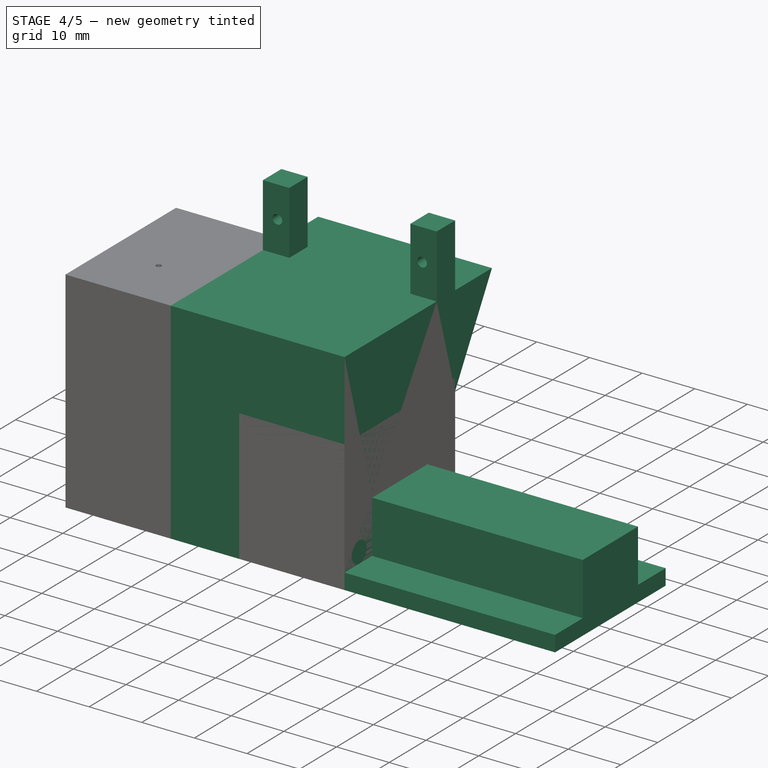
[diagram: stage 4 of 5 — iso view after this stage's code; geometry added in this stage tinted green]
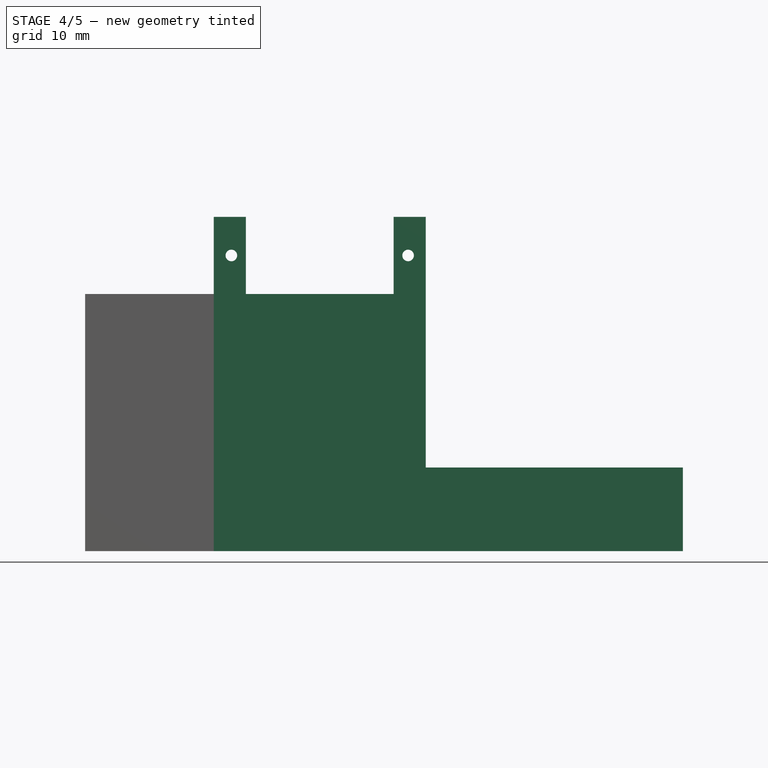
[diagram: stage 4 of 5 — front view after this stage's code; geometry added in this stage tinted green]
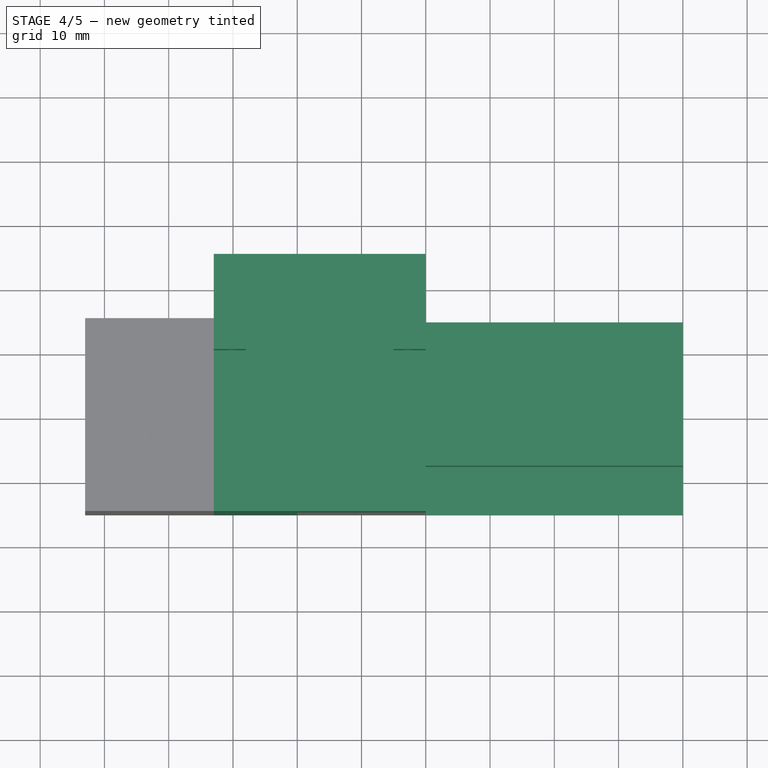
[diagram: stage 4 of 5 — top view after this stage's code; geometry added in this stage tinted green]
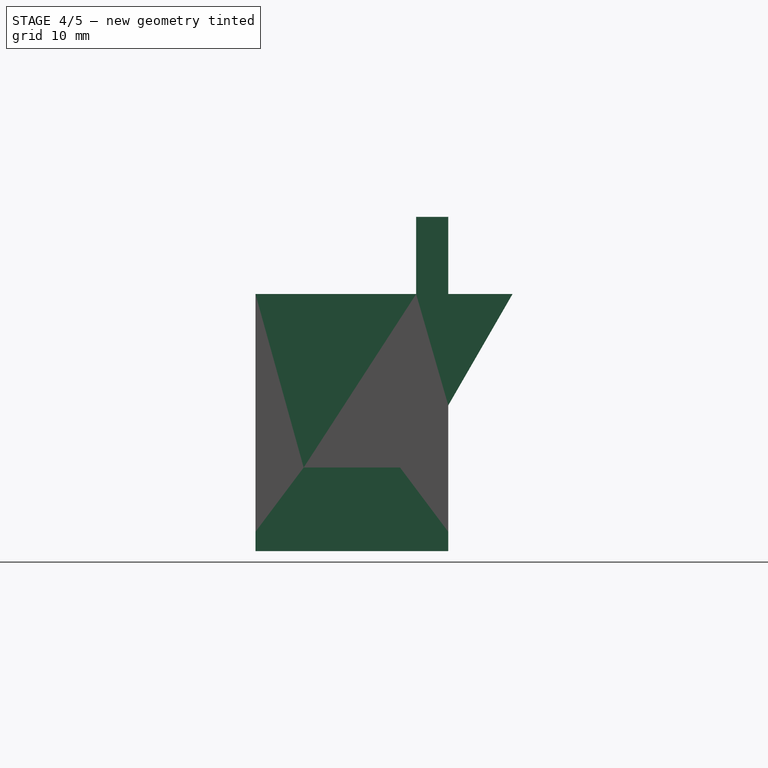
[diagram: stage 4 of 5 — right view after this stage's code; geometry added in this stage tinted green]
FEATURE [Sketcher::SketchObject] Sketch
  MapMode = 5
  Placement = pos=(0,0,0) rot=(1,0,0;1.5708rad)
  Support = -> [XZ_Plane]
  sketch-geometry (6):
    g0: LineSegment StartX=-33 StartY=40 StartZ=0 EndX=-33 EndY=0 EndZ=0
    g1: LineSegment StartX=-33 StartY=0 StartZ=0 EndX=40 EndY=0 EndZ=0
    g2: LineSegment StartX=40 StartY=0 StartZ=0 EndX=40 EndY=3 EndZ=0
    g3: LineSegment StartX=40 StartY=3 StartZ=0 EndX=0 EndY=3 EndZ=0
    g4: LineSegment StartX=0 StartY=3 StartZ=0 EndX=0 EndY=40 EndZ=0
    g5: LineSegment StartX=0 StartY=40 StartZ=0 EndX=-33 EndY=40 EndZ=0
  constraints (18):
    c: PointOnObject(g0,g-1)
    c: Vertical(g0)
    c: Coincident(g0,g1)
    c: PointOnObject(g1,g-1)
    c: Coincident(g1,g2)
    c: Coincident(g2,g3)
    c: Horizontal(g3)
    c: Coincident(g3,g4)
    c: Vertical(g4)
    c: Coincident(g4,g5)
    c: Coincident(g5,g0)
    c: Horizontal(g5)
    c: DistanceY(g0,g0) = 40
    c: DistanceX(g5,g5) = 33
    c: DistanceX(g3,g3) = 40
    c: Vertical(g2)
    c: DistanceY(g2,g2) = 3
    c: PointOnObject(g3,g-2)
FEATURE [PartDesign::Pad] Pad
  Length = 30
  Length2 = 100
  Midplane = true
  Placement = pos=(0,0,0) rot=(1,0,0;1.5708rad)
  Profile = -> Sketch
  Refine = true
  Type = 0
FEATURE [Sketcher::SketchObject] Sketch001
  ExternalGeometry = -> [Pad]
  MapMode = 5
  Placement = pos=(0,1.3e-15,3) rot=(0,0,1;3.14159rad)
  Support = -> [Pad]
  sketch-geometry (4):
    g0: LineSegment StartX=0 StartY=7.5 StartZ=0 EndX=-40 EndY=7.5 EndZ=0
    g1: LineSegment StartX=-40 StartY=7.5 StartZ=0 EndX=-40 EndY=-7.5 EndZ=0
    g2: LineSegment StartX=-40 StartY=-7.5 StartZ=0 EndX=0 EndY=-7.5 EndZ=0
    g3: LineSegment StartX=0 StartY=-7.5 StartZ=0 EndX=0 EndY=7.5 EndZ=0
  constraints (11):
    c: Coincident(g0,g1)
    c: Coincident(g1,g2)
    c: Coincident(g2,g3)
    c: Coincident(g3,g0)
    c: Horizontal(g0)
    c: Horizontal(g2)
    c: Vertical(g3)
    c: PointOnObject(g0,g-2)
    c: PointOnObject(g0,g-3)
    c: DistanceY(g1,g1) = 15
    c: Symmetric(g0,g1,g-1)
FEATURE [PartDesign::Pad] Pad001
  BaseFeature = -> Pad
  Length = 10
  Length2 = 100
  Placement = pos=(0,0,0) rot=(1,0,0;1.5708rad)
  Profile = -> Sketch001
  Refine = true
  Type = 0
FEATURE [Sketcher::SketchObject] Sketch002
  ExternalGeometry = -> [Pad001]
  MapMode = 5
  Placement = pos=(-33,0,0) rot=(0.707107,0,-0.707107;3.14159rad)
  Support = -> [Pad001]
  sketch-geometry (7):
    g0: Circle CenterX=-36 CenterY=11 CenterZ=0 NormalX=0 NormalY=0 NormalZ=1 AngleXU=0 Radius=2
    g1: Circle CenterX=-20 CenterY=11 CenterZ=0 NormalX=0 NormalY=0 NormalZ=1 AngleXU=0 Radius=2
    g2: Circle CenterX=-4 CenterY=11 CenterZ=0 NormalX=0 NormalY=0 NormalZ=1 AngleXU=0 Radius=2
    g3: Circle CenterX=-4 CenterY=-11 CenterZ=0 NormalX=0 NormalY=0 NormalZ=1 AngleXU=0 Radius=2
    g4: Circle CenterX=-20 CenterY=-11 CenterZ=0 NormalX=0 NormalY=0 NormalZ=1 AngleXU=0 Radius=2
    g5: Circle CenterX=-36 CenterY=-11 CenterZ=0 NormalX=0 NormalY=0 NormalZ=1 AngleXU=0 Radius=2
    g6: LineSegment [constr] StartX=-20 StartY=11 StartZ=0 EndX=-20 EndY=-11 EndZ=0
  constraints (16):
    c: Equal(g0,g5)
    c: Equal(g5,g4)
    c: Equal(g4,g3)
    c: Equal(g3,g2)
    c: Equal(g2,g1)
    c: Symmetric(g0,g5,g-1)
    c: Horizontal(g0,g1)
    c: Symmetric(g3,g2,g-1)
    c: Symmetric(g4,g1,g-1)
    c: Coincident(g6,g1)
    c: Coincident(g6,g4)
    c: Symmetric(g0,g2,g6)
    c: Radius(g0) = 2
    c: DistanceX(g2,g-3) = 4
    c: DistanceY(g2,g-3) = 4
    c: Symmetric(g-3,g-3,g6)
FEATURE [PartDesign::Pocket] Pocket
  BaseFeature = -> Pad001
  Length = 20
  Length2 = 100
  Placement = pos=(0,0,0) rot=(1,0,0;1.5708rad)
  Profile = -> Sketch002
  Refine = true
  Type = 0
FEATURE [Sketcher::SketchObject] Sketch003
  ExternalGeometry = -> [Pocket]
  MapMode = 5
  Placement = pos=(0,1.76e-14,40) rot=(0,0,1;3.14159rad)
  Support = -> [Pocket]
  sketch-geometry (8):
    g0: LineSegment StartX=0 StartY=-15 StartZ=0 EndX=5 EndY=-15 EndZ=0
    g1: LineSegment StartX=5 StartY=-15 StartZ=0 EndX=5 EndY=-10 EndZ=0
    g2: LineSegment StartX=5 StartY=-10 StartZ=0 EndX=0 EndY=-10 EndZ=0
    g3: LineSegment StartX=0 StartY=-10 StartZ=0 EndX=0 EndY=-15 EndZ=0
    g4: LineSegment StartX=33 StartY=-15 StartZ=0 EndX=28 EndY=-15 EndZ=0
    g5: LineSegment StartX=28 StartY=-15 StartZ=0 EndX=28 EndY=-10 EndZ=0
    g6: LineSegment StartX=28 StartY=-10 StartZ=0 EndX=33 EndY=-10 EndZ=0
    g7: LineSegment StartX=33 StartY=-10 StartZ=0 EndX=33 EndY=-15 EndZ=0
  constraints (22):
    c: Coincident(g0,g1)
    c: Coincident(g1,g2)
    c: Coincident(g2,g3)
    c: Coincident(g3,g0)
    c: Horizontal(g0)
    c: Horizontal(g2)
    c: Vertical(g1)
    c: Vertical(g3)
    c: Coincident(g4,g5)
    c: Coincident(g5,g6)
    c: Coincident(g6,g7)
    c: Coincident(g7,g4)
    c: Horizontal(g4)
    c: Horizontal(g6)
    c: Vertical(g5)
    c: Vertical(g7)
    c: Coincident(g4,g-4)
    c: Equal(g2,g6)
    c: Equal(g5,g1)
    c: Coincident(g0,g-3)
    c: DistanceY(g1,g1) = 5
    c: DistanceX(g1,g5) = 23
FEATURE [PartDesign::Pad] Pad002
  BaseFeature = -> Pocket
  Length = 12
  Length2 = 100
  Placement = pos=(0,0,0) rot=(1,0,0;1.5708rad)
  Profile = -> Sketch003
  Refine = true
  Type = 0
FEATURE [Sketcher::SketchObject] Sketch004
  ExternalGeometry = -> [Pad002]
  MapMode = 5
  Placement = pos=(0,10,-1.78e-14) rot=(1,0,0;1.5708rad)
  Support = -> [Pad002]
  sketch-geometry (4):
    g0: Circle CenterX=-30.25 CenterY=46 CenterZ=0 NormalX=0 NormalY=0 NormalZ=1 AngleXU=0 Radius=0.9
    g1: Circle CenterX=-2.75 CenterY=46 CenterZ=0 NormalX=0 NormalY=0 NormalZ=1 AngleXU=0 Radius=0.9
    g2: LineSegment [constr] StartX=-30.25 StartY=46 StartZ=0 EndX=-2.75 EndY=46 EndZ=0
    g3: LineSegment [constr] StartX=-16.5 StartY=46 StartZ=0 EndX=-16.5 EndY=40 EndZ=0
  constraints (10):
    c: Equal(g1,g0)
    c: Radius(g0) = 0.9
    c: DistanceX(g0,g1) = 27.5
    c: Coincident(g2,g0)
    c: Coincident(g1,g2)
    c: Symmetric(g-3,g-4,g2)
    c: PointOnObject(g3,g-4)
    c: PointOnObject(g3,g2)
    c: Symmetric(g0,g1,g3)
    c: Symmetric(g-5,g-3,g3)
FEATURE [PartDesign::Pocket] Pocket001
  BaseFeature = -> Pad002
  Length = 5
  Length2 = 100
  Placement = pos=(0,0,0) rot=(1,0,0;1.5708rad)
  Profile = -> Sketch004
  Refine = true
  Type = 1
FEATURE [Sketcher::SketchObject] Sketch005
  ExternalGeometry = -> [Pocket001]
  MapMode = 5
  Placement = pos=(0,0,0) rot=(0.707107,0,0.707107;3.14159rad)
  Support = -> [Pocket001]
  sketch-geometry (3):
    g0: LineSegment StartX=22.6795 StartY=-15 StartZ=0 EndX=40 EndY=-25 EndZ=0
    g1: LineSegment StartX=40 StartY=-25 StartZ=0 EndX=40 EndY=-15 EndZ=0
    g2: LineSegment StartX=40 StartY=-15 StartZ=0 EndX=22.6795 EndY=-15 EndZ=0
  constraints (9):
    c: PointOnObject(g0,g-4)
    c: Coincident(g0,g1)
    c: PointOnObject(g1,g-4)
    c: Vertical(g1)
    c: Coincident(g1,g2)
    c: Coincident(g2,g0)
    c: Vertical(g1,g-3)
    c: Angle(g0) = -0.523599
    c: DistanceY(g1,g1) = 10
FEATURE [PartDesign::Pad] Pad003
  BaseFeature = -> Pocket001
  Length = 10
  Length2 = 100
  Placement = pos=(0,0,0) rot=(1,0,0;1.5708rad)
  Profile = -> Sketch005
  Refine = true
  Reversed = true
  Type = 3
  UpToFace = -> Pocket001 [Face7]
FEATURE [Sketcher::SketchObject] Sketch013
  ExternalGeometry = -> [Pocket007]
  MapMode = 5
  Placement = pos=(-20,0,0) rot=(0.57735,-0.57735,-0.57735;2.0944rad)
  Support = -> [Pocket007]
  sketch-geometry (3):
    g0: Circle CenterX=-11 CenterY=21 CenterZ=0 NormalX=0 NormalY=0 NormalZ=1 AngleXU=0 Radius=3
    g1: Circle CenterX=-11 CenterY=5 CenterZ=0 NormalX=0 NormalY=0 NormalZ=1 AngleXU=0 Radius=3
    g2: Circle CenterX=11 CenterY=5 CenterZ=0 NormalX=0 NormalY=0 NormalZ=1 AngleXU=0 Radius=3
  constraints (6):
    c: Coincident(g0,g-3)
    c: Coincident(g1,g-4)
    c: Coincident(g2,g-5)
    c: Equal(g2,g1)
    c: Equal(g1,g0)
    c: Radius(g0) = 3
FEATURE [PartDesign::Pocket] Pocket008
  BaseFeature = -> Pocket007
  Length = 3
  Length2 = 100
  Profile = -> Sketch013
  Refine = true
  Type = 0
FEATURE [Sketcher::SketchObject] Sketch014
  ExternalGeometry = -> [Pocket008]
  MapMode = 5
  Placement = pos=(-2,0,0) rot=(0.57735,-0.57735,-0.57735;2.0944rad)
  Support = -> [Pocket008]
  sketch-geometry (5):
    g0: LineSegment StartX=-3 StartY=0 StartZ=0 EndX=13 EndY=0 EndZ=0
    g1: LineSegment StartX=13 StartY=0 StartZ=0 EndX=13 EndY=8 EndZ=0
    g2: LineSegment StartX=13 StartY=8 StartZ=0 EndX=-3 EndY=8 EndZ=0
    g3: LineSegment StartX=-3 StartY=8 StartZ=0 EndX=-3 EndY=0 EndZ=0
    g4: Circle CenterX=11 CenterY=5 CenterZ=0 NormalX=0 NormalY=0 NormalZ=1 AngleXU=0 Radius=2
  constraints (13):
    c: Coincident(g0,g1)
    c: Coincident(g1,g2)
    c: Coincident(g2,g3)
    c: Coincident(g3,g0)
    c: Horizontal(g0)
    c: Horizontal(g2)
    c: Vertical(g1)
    c: Vertical(g3)
    c: PointOnObject(g1,g-4)
    c: Coincident(g0,g-3)
    c: DistanceY(g1,g1) = 8
    c: Coincident(g4,g-5)
    c: PointOnObject(g-5,g4)
FEATURE [PartDesign::Pad] Pad005
  BaseFeature = -> Pocket008
  Length = 14
  Length2 = 100
  Profile = -> Sketch014
  Refine = true
  Type = 0
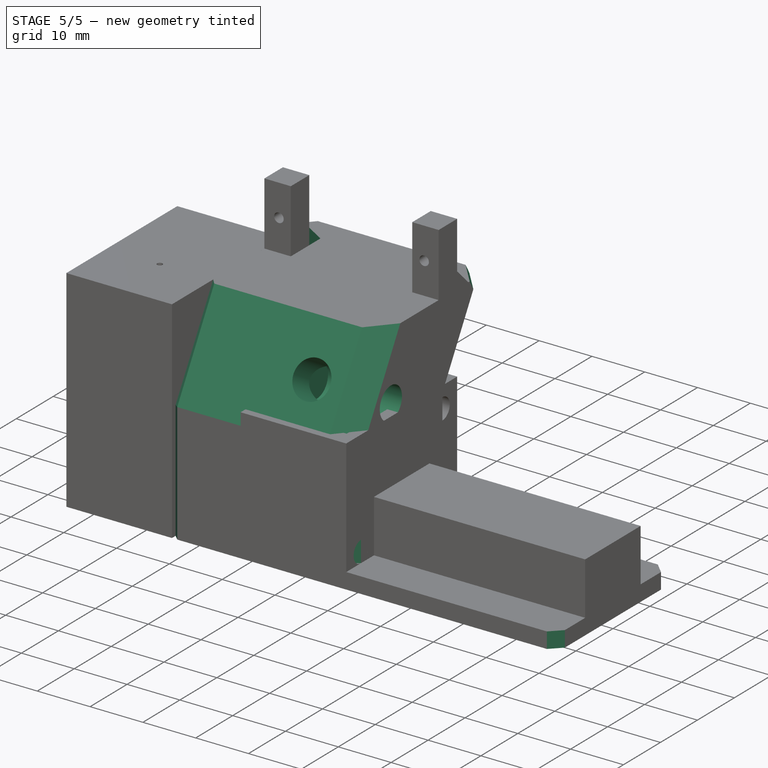
[diagram: stage 5 of 5 — iso view after this stage's code; geometry added in this stage tinted green]
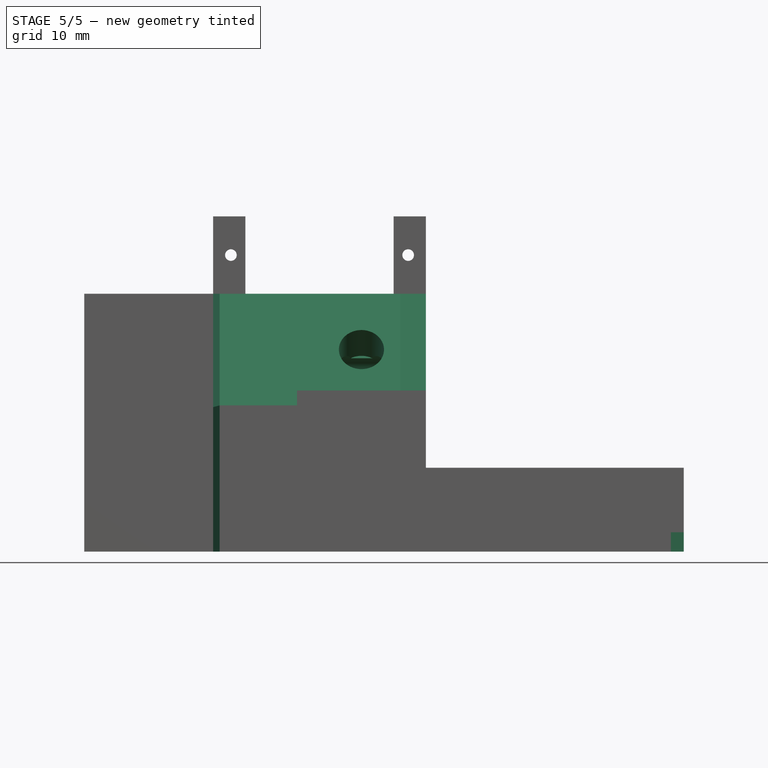
[diagram: stage 5 of 5 — front view after this stage's code; geometry added in this stage tinted green]
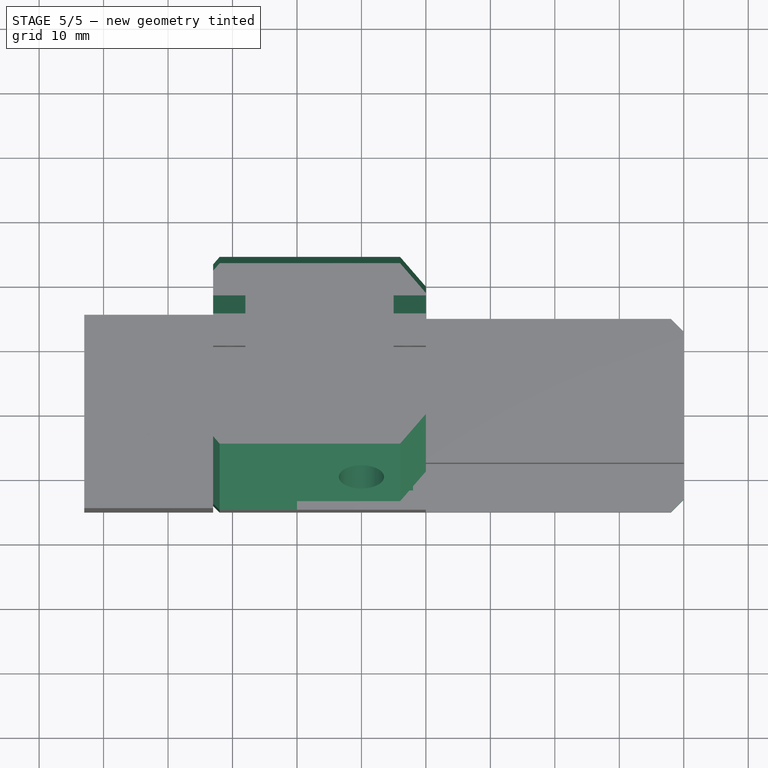
[diagram: stage 5 of 5 — top view after this stage's code; geometry added in this stage tinted green]
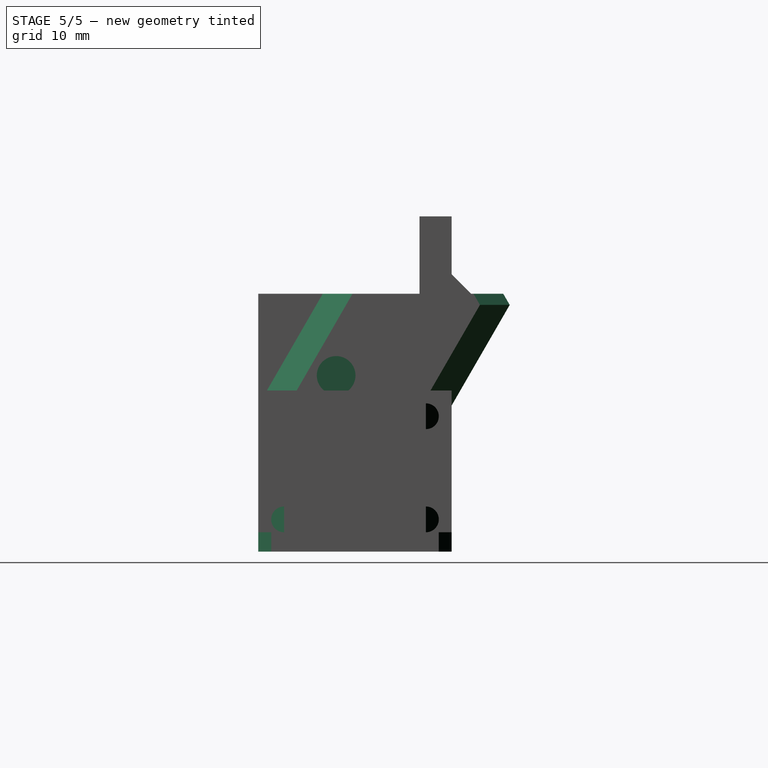
[diagram: stage 5 of 5 — right view after this stage's code; geometry added in this stage tinted green]
FEATURE [Sketcher::SketchObject] Sketch006
  ExternalGeometry = -> [Pad003]
  MapMode = 5
  Placement = pos=(-33,2.6e-15,3e-16) rot=(-0.707107,0,0.707107;3.14159rad)
  Support = -> [Pad003]
  sketch-geometry (3):
    g0: LineSegment StartX=-40 StartY=5 StartZ=0 EndX=-22.6795 EndY=15 EndZ=0
    g1: LineSegment StartX=-22.6795 StartY=15 StartZ=0 EndX=-40 EndY=15 EndZ=0
    g2: LineSegment StartX=-40 StartY=15 StartZ=0 EndX=-40 EndY=5 EndZ=0
  constraints (8):
    c: PointOnObject(g0,g-4)
    c: PointOnObject(g0,g-3)
    c: Coincident(g0,g1)
    c: Coincident(g1,g-4)
    c: Coincident(g1,g2)
    c: Coincident(g2,g0)
    c: Parallel(g0,g-5)
    c: Vertical(g0,g-5)
FEATURE [PartDesign::Pocket] Pocket002
  BaseFeature = -> Pad003
  Length = 5
  Length2 = 100
  Placement = pos=(0,0,0) rot=(1,0,0;1.5708rad)
  Profile = -> Sketch006
  Refine = true
  Type = 1
FEATURE [PartDesign::Chamfer] Chamfer
  Base = -> Pocket002 [Edge16]
  BaseFeature = -> Pocket002
  Placement = pos=(0,0,0) rot=(1,0,0;1.5708rad)
  Size = 2
FEATURE [PartDesign::Chamfer] Chamfer001
  Base = -> Chamfer [Edge63,Edge58]
  BaseFeature = -> Chamfer
  Placement = pos=(0,0,0) rot=(1,0,0;1.5708rad)
  Size = 2
FEATURE [PartDesign::Chamfer] Chamfer002
  Base = -> Chamfer001 [Edge18,Edge20,Edge3,Edge14,Edge15]
  BaseFeature = -> Chamfer001
  Placement = pos=(0,0,0) rot=(1,0,0;1.5708rad)
  Size = 1
FEATURE [PartDesign::Chamfer] Chamfer003
  Base = -> Chamfer002 [Edge33,Edge31,Edge20,Edge6,Edge25]
  BaseFeature = -> Chamfer002
  Placement = pos=(0,0,0) rot=(1,0,0;1.5708rad)
  Size = 4
FEATURE [Sketcher::SketchObject] Sketch007
  ExternalGeometry = -> [Chamfer003]
  MapMode = 5
  Placement = pos=(1e-15,-21.0705,12.1651) rot=(1,0,0;1.0472rad)
  Support = -> [Chamfer003]
  sketch-geometry (2):
    g0: Circle CenterX=-10 CenterY=22.141 CenterZ=0 NormalX=0 NormalY=0 NormalZ=1 AngleXU=0 Radius=3.5
    g1: LineSegment [constr] StartX=-10 StartY=22.141 StartZ=0 EndX=0 EndY=22.141 EndZ=0
  constraints (5):
    c: Radius(g0) = 3.5
    c: Coincident(g1,g0)
    c: PointOnObject(g1,g-2)
    c: Symmetric(g-3,g-4,g1)
    c: DistanceX(g1,g1) = 10
FEATURE [PartDesign::Pocket] Pocket003
  BaseFeature = -> Chamfer003
  Length = 8
  Length2 = 100
  Placement = pos=(0,0,0) rot=(1,0,0;1.5708rad)
  Profile = -> Sketch007
  Refine = true
  Type = 0
FEATURE [Sketcher::SketchObject] Sketch008
  MapMode = 5
  Placement = pos=(4e-16,0,0) rot=(0.707107,0,0.707107;3.14159rad)
  Support = -> [Pocket003]
  sketch-geometry (1):
    g0: Circle CenterX=27.3305 CenterY=2.92506 CenterZ=0 NormalX=0 NormalY=0 NormalZ=1 AngleXU=0 Radius=3
  constraints (1):
    c: Radius(g0) = 3
FEATURE [PartDesign::Pocket] Pocket004
  BaseFeature = -> Pocket003
  Length = 14
  Length2 = 100
  Placement = pos=(0,0,0) rot=(1,0,0;1.5708rad)
  Profile = -> Sketch008
  Refine = true
  Type = 0
FEATURE [PartDesign::Chamfer] Chamfer004
  Base = -> Pocket004 [Edge77,Edge78]
  BaseFeature = -> Pocket004
  Placement = pos=(0,0,0) rot=(1,0,0;1.5708rad)
  Size = 3
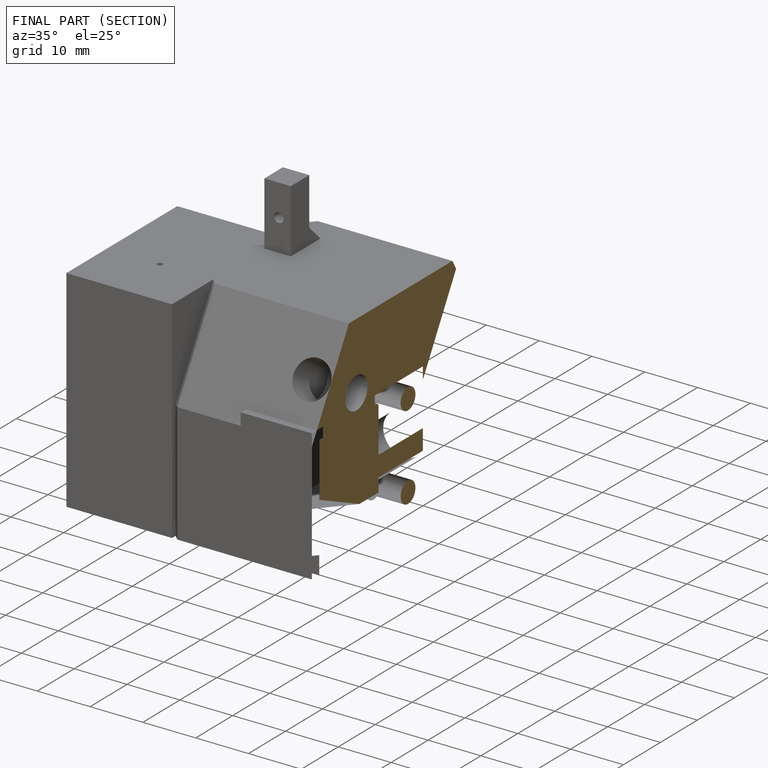
[diagram: finished part — half-section view (interior)]
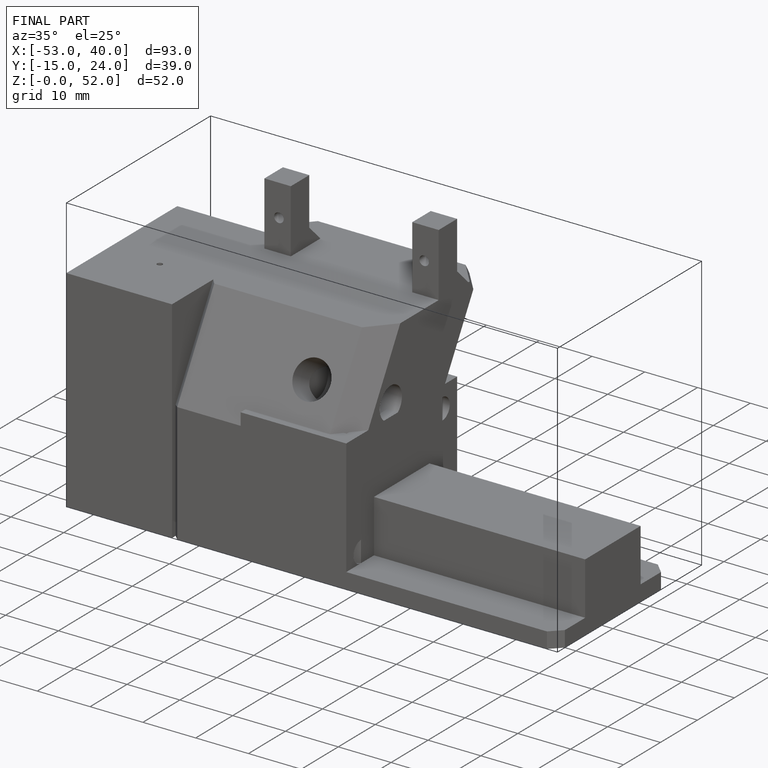
[diagram: finished part — iso view with bounding-box wireframe]
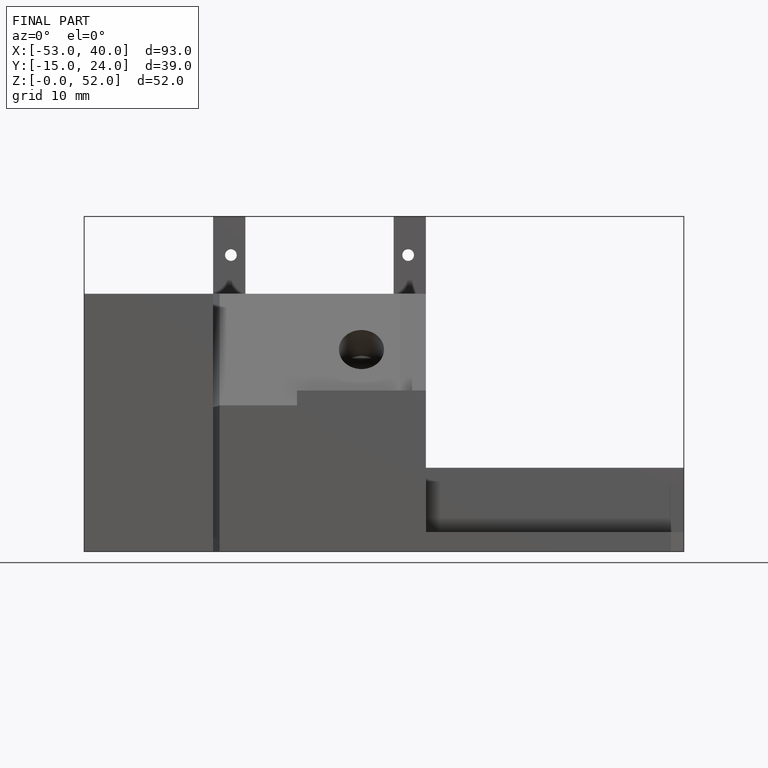
[diagram: finished part — front view with bounding-box wireframe]
